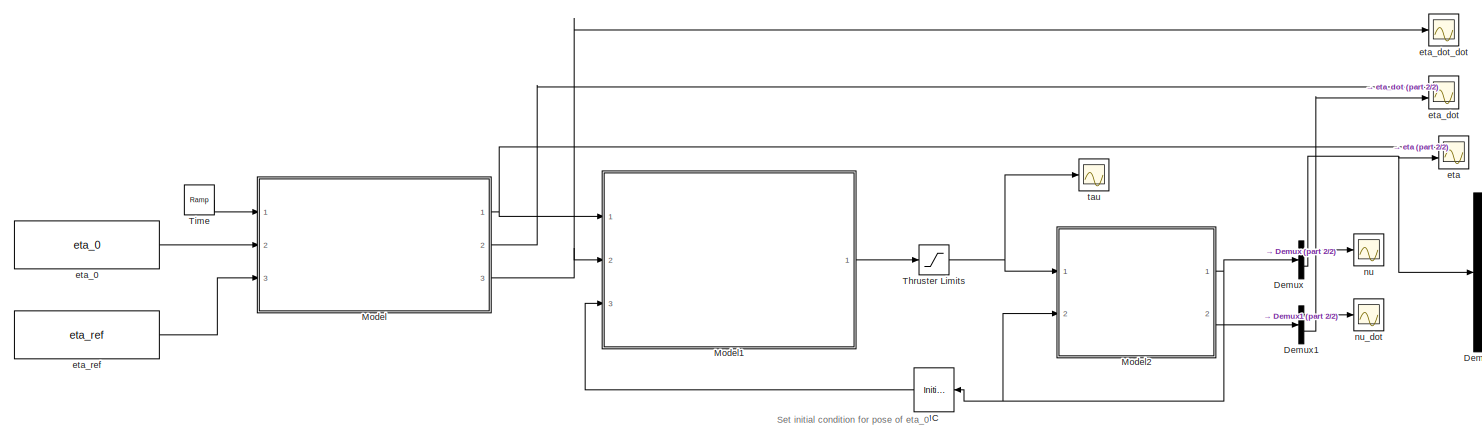
[diagram: root canvas - part 1/2, center side, full height]
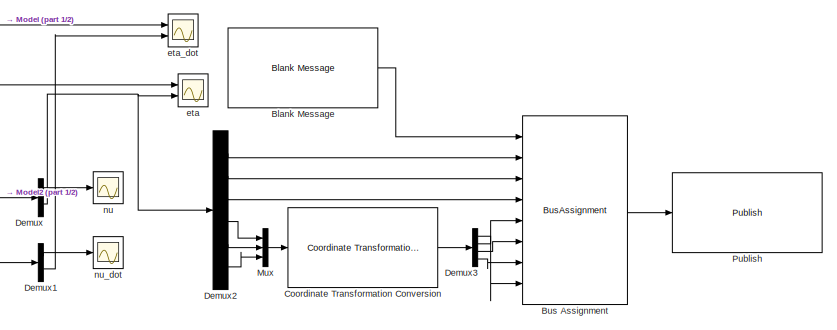
[diagram: root canvas - part 2/2, middle right region]
MODEL slx_e6c8e4049565
KIND model
CONFIG AbsTol = auto
CONFIG EnableMultiTasking = off
CONFIG FixedStep = auto
CONFIG MaxStep = auto
CONFIG MinStep = auto
CONFIG RelTol = 1e-3
CONFIG SampleTimeConstraint = Unconstrained
CONFIG Solver = VariableStepAuto
CONFIG SolverName = VariableStepAuto
CONFIG StartTime = 0.0
CONFIG StopTime = 120
BLOCK [Reference] Blank Message  REF=robotlib/Blank Message
  Ports = [0, 1]
  SourceBlock = robotlib/Blank Message
  SourceProductBaseCode = RR
  SourceProductName = ROS Toolbox
  SourceType = ROS Blank Message
BLOCK [BusAssignment] Bus Assignment
  AssignedSignals = Position.X,Position.Y,Position.Z,Orientation.X,Orientation.Y,Orientation.Z,Orientation.W
  Ports = [8, 1]
BLOCK [Reference] Coordinate Transformation Conversion  REF=robotcorelib/Coordinate Transformation Conversion
  Ports = [1, 1]
  SourceBlock = robotcorelib/Coordinate Transformation Conversion
  SourceProductBaseCode = RO
  SourceProductName = Robotics System Toolbox
  SourceType = robotics.slcore.internal.block.CoordinateTransformationConversion
BLOCK [Demux] Demux
  DisplayOption = bar
  Outputs = [6,6]
  Ports = [1, 2]
BLOCK [Demux] Demux1
  DisplayOption = bar
  Outputs = [6,6]
  Ports = [1, 2]
BLOCK [Demux] Demux2
  DisplayOption = bar
  Outputs = 6
  Ports = [1, 6]
BLOCK [Demux] Demux3
  DisplayOption = bar
  Ports = [1, 4]
BLOCK [InitialCondition] IC
  Value = [0;0;0;0;0;0;eta_0]
BLOCK [ModelReference] Model
  ModelNameDialog = trajectory_planner.slx
  ModelReferenceVersion = 1.30
  Ports = [3, 3]
BLOCK [ModelReference] Model1
  ModelNameDialog = controller.slx
  ModelReferenceVersion = 1.73
  Ports = [3, 1]
BLOCK [ModelReference] Model2
  ModelNameDialog = auv_model
  ModelReferenceVersion = 1.19
  Ports = [2, 2]
BLOCK [Mux] Mux
  DisplayOption = bar
  Inputs = 3
  Ports = [3, 1]
BLOCK [Reference] Publish  REF=robotlib/Publish
  Ports = [1]
  SourceBlock = robotlib/Publish
  SourceProductBaseCode = RR
  SourceProductName = ROS Toolbox
  SourceType = ROS Publish
BLOCK [Saturate] Thruster Limits
  InputPortMap = u0
  LowerLimit = thrust_lower_limit
  Ports = [1, 1]
  UpperLimit = thrust_upper_limit
BLOCK [Reference] Time   REF=simulink/Sources/Ramp
  Ports = [0, 1]
  SourceBlock = simulink/Sources/Ramp
  SourceProductBaseCode = SL
  SourceProductName = Simulink
  SourceType = Ramp
BLOCK [Scope] eta
  Floating = off
  NumInputPorts = 2
  Ports = [2]
  ScopeSpecificationString = Simulink.scopes.TimeScopeBlockCfg('CurrentConfiguration', extmgr.ConfigurationSet(extmgr.Configuration('Core','General UI',true),extmgr.Configuration('Core','Source UI',true),extmgr.Configuration('Sources','WiredSimulink',true,'DataLoggingVariableName','ScopeData2'),extmgr.Configuration('Visuals','Time Domain',true,'SerializedDisplays',{struct('MinYLimReal','0.15548','MaxYLimReal','2.75046','YLabe...<+1570ch>
BLOCK [Constant] eta_0
  Value = eta_0
BLOCK [Scope] eta_dot
  Floating = off
  NumInputPorts = 2
  Ports = [2]
  ScopeSpecificationString = Simulink.scopes.TimeScopeBlockCfg('CurrentConfiguration', extmgr.ConfigurationSet(extmgr.Configuration('Core','General UI',true),extmgr.Configuration('Core','Source UI',true),extmgr.Configuration('Sources','WiredSimulink',true,'DataLoggingVariableName','ScopeData3'),extmgr.Configuration('Visuals','Time Domain',true,'SerializedDisplays',{struct('MinYLimReal','-0.1272','MaxYLimReal','1.0865','YLabel...<+1501ch>
BLOCK [Scope] eta_dot_dot
  Floating = off
  NumInputPorts = 1
  Ports = [1]
  ScopeSpecificationString = Simulink.scopes.TimeScopeBlockCfg('CurrentConfiguration', extmgr.ConfigurationSet(extmgr.Configuration('Core','General UI',true),extmgr.Configuration('Core','Source UI',true),extmgr.Configuration('Sources','WiredSimulink',true,'DataLoggingVariableName','ScopeData4'),extmgr.Configuration('Visuals','Time Domain',true,'SerializedDisplays',{struct('MinYLimReal','-0.00751','MaxYLimReal','0.00751','YLab...<+1428ch>
BLOCK [Constant] eta_ref
  Value = eta_ref
BLOCK [Scope] nu
  Floating = off
  NumInputPorts = 1
  Ports = [1]
  ScopeSpecificationString = Simulink.scopes.TimeScopeBlockCfg('CurrentConfiguration', extmgr.ConfigurationSet(extmgr.Configuration('Core','General UI',true),extmgr.Configuration('Core','Source UI',true),extmgr.Configuration('Sources','WiredSimulink',true,'DataLoggingVariableName','ScopeData5'),extmgr.Configuration('Visuals','Time Domain',true,'SerializedDisplays',{struct('MinYLimReal','-0.35677','MaxYLimReal','1.15075','YLab...<+1456ch>
BLOCK [Scope] nu_dot
  Floating = off
  NumInputPorts = 1
  Ports = [1]
  ScopeSpecificationString = Simulink.scopes.TimeScopeBlockCfg('CurrentConfiguration', extmgr.ConfigurationSet(extmgr.Configuration('Core','General UI',true),extmgr.Configuration('Core','Source UI',true),extmgr.Configuration('Sources','WiredSimulink',true),extmgr.Configuration('Visuals','Time Domain',true,'SerializedDisplays',{struct('MinYLimReal','-0.74555','MaxYLimReal','0.89478','YLabelReal','','MinYLimMag','0.00000','MaxY...<+1395ch>
BLOCK [Scope] tau 
  Floating = off
  NumInputPorts = 1
  Ports = [1]
  ScopeSpecificationString = Simulink.scopes.TimeScopeBlockCfg('CurrentConfiguration', extmgr.ConfigurationSet(extmgr.Configuration('Core','General UI',true),extmgr.Configuration('Core','Source UI',true),extmgr.Configuration('Sources','WiredSimulink',true,'DataLoggingVariableName','ScopeData1'),extmgr.Configuration('Visuals','Time Domain',true,'SerializedDisplays',{struct('MinYLimReal','-12.5','MaxYLimReal','12.5','YLabelReal...<+1487ch>
ANNOTATION (root): Set initial condition for pose of eta_0
LINE Blank Message:1 -> Bus Assignment:1
LINE Bus Assignment:1 -> Publish:1
LINE Coordinate Transformation Conversion:1 -> Demux3:1
LINE Demux1:1 -> nu_dot:1
LINE Demux1:2 -> eta_dot:2
LINE Demux2:1 -> Bus Assignment:2
LINE Demux2:2 -> Bus Assignment:3
LINE Demux2:3 -> Bus Assignment:4
LINE Demux2:4 -> Mux:1
LINE Demux2:5 -> Mux:2
LINE Demux2:6 -> Mux:3
LINE Demux3:1 -> Bus Assignment:8
LINE Demux3:2 -> Bus Assignment:5
LINE Demux3:3 -> Bus Assignment:6
LINE Demux3:4 -> Bus Assignment:7
LINE Demux:1 -> nu:1
NET Demux:2 -> Demux2:1, eta:2
LINE IC:1 -> Model1:3
LINE Model1:1 -> Thruster Limits:1
NET Model2:1 -> Demux:1, IC:1, Model2:2
LINE Model2:2 -> Demux1:1
NET Model:1 -> Model1:1, eta:1
LINE Model:2 -> eta_dot:1
NET Model:3 -> Model1:2, eta_dot_dot:1
LINE Mux:1 -> Coordinate Transformation Conversion:1
NET Thruster Limits:1 -> Model2:1, tau :1
LINE Time :1 -> Model:1
LINE eta_0:1 -> Model:2
LINE eta_ref:1 -> Model:3
note: NET lines group one-source signal fan-out (src -> all destinations, sorted); 1:1 wires keep LINE
